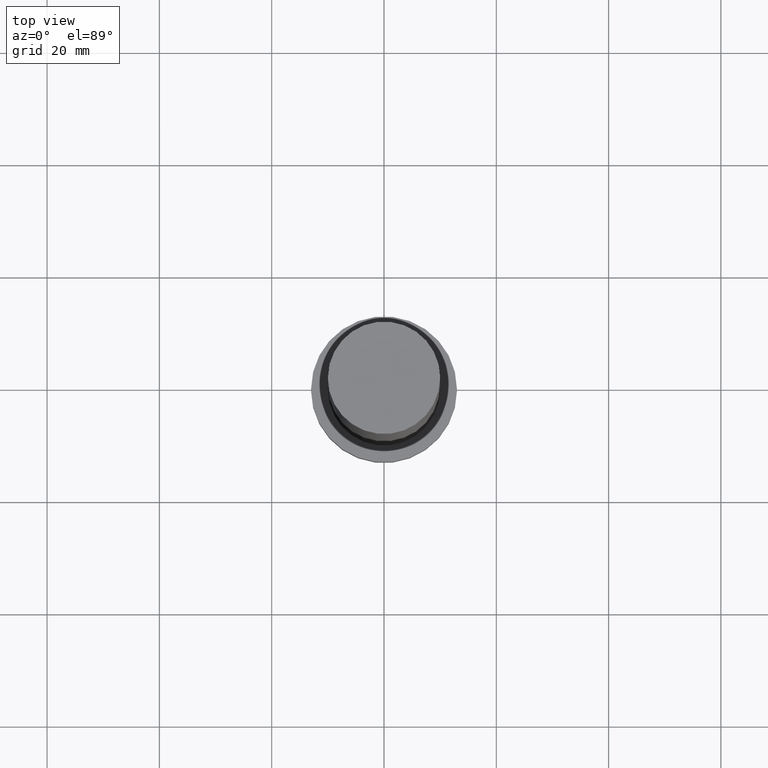
[diagram: clean part render]
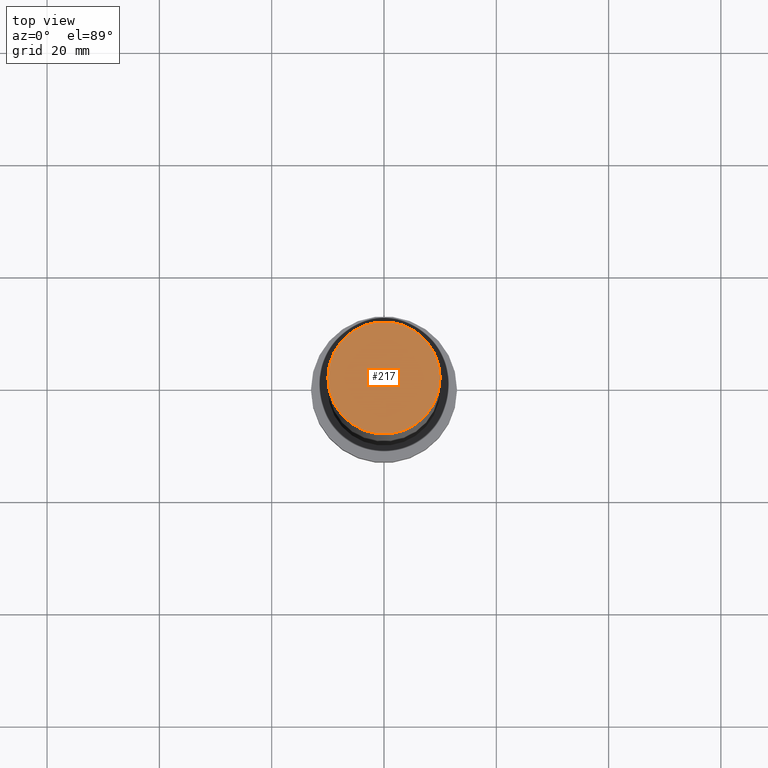
[diagram: same view with one face highlighted and labeled with its STEP entity id]
A machine part, top view. The second image highlights one B-rep face of the part: STEP entity #217.
In plain terms, the highlighted planar face has unit normal (0, 0, 1).
Its self-contained STEP definition (entity closure, byte-faithful):
#29 = CARTESIAN_POINT ( 'NONE',  ( 0.000000000000000000, 0.000000000000000000, 125.0000000000000000 ) ) ;
#40 = CIRCLE ( 'NONE', #248, 10.00000000000000000 ) ;
#45 = ORIENTED_EDGE ( 'NONE', *, *, #78, .T. ) ;
#58 = ORIENTED_EDGE ( 'NONE', *, *, #98, .T. ) ;
#64 = VERTEX_POINT ( 'NONE', #204 ) ;
#66 = CIRCLE ( 'NONE', #206, 10.00000000000000000 ) ;
#72 = DIRECTION ( 'NONE',  ( 1.000000000000000000, 0.000000000000000000, -0.000000000000000000 ) ) ;
#78 = EDGE_CURVE ( 'NONE', #64, #218, #66, .T. ) ;
#98 = EDGE_CURVE ( 'NONE', #218, #64, #40, .T. ) ;
#108 = DIRECTION ( 'NONE',  ( 0.000000000000000000, 0.000000000000000000, 1.000000000000000000 ) ) ;
#118 = DIRECTION ( 'NONE',  ( 1.000000000000000000, 0.000000000000000000, 0.000000000000000000 ) ) ;
#121 = AXIS2_PLACEMENT_3D ( 'NONE', #29, #108, #72 ) ;
#135 = PLANE ( 'NONE',  #121 ) ;
#138 = CARTESIAN_POINT ( 'NONE',  ( 0.000000000000000000, 0.000000000000000000, 125.0000000000000000 ) ) ;
#148 = DIRECTION ( 'NONE',  ( 0.000000000000000000, 0.000000000000000000, 1.000000000000000000 ) ) ;
#152 = FACE_OUTER_BOUND ( 'NONE', #239, .T. ) ;
#165 = CARTESIAN_POINT ( 'NONE',  ( 10.00000000000000000, 1.224646799147353256E-15, 125.0000000000000000 ) ) ;
#173 = DIRECTION ( 'NONE',  ( 1.000000000000000000, 0.000000000000000000, 0.000000000000000000 ) ) ;
#204 = CARTESIAN_POINT ( 'NONE',  ( -10.00000000000000000, 0.000000000000000000, 125.0000000000000000 ) ) ;
#206 = AXIS2_PLACEMENT_3D ( 'NONE', #138, #148, #173 ) ;
#217 = ADVANCED_FACE ( 'NONE', ( #152 ), #135, .T. ) ;
#218 = VERTEX_POINT ( 'NONE', #165 ) ;
#235 = CARTESIAN_POINT ( 'NONE',  ( 0.000000000000000000, 0.000000000000000000, 125.0000000000000000 ) ) ;
#239 = EDGE_LOOP ( 'NONE', ( #45, #58 ) ) ;
#248 = AXIS2_PLACEMENT_3D ( 'NONE', #235, #250, #118 ) ;
#250 = DIRECTION ( 'NONE',  ( 0.000000000000000000, 0.000000000000000000, 1.000000000000000000 ) ) ;